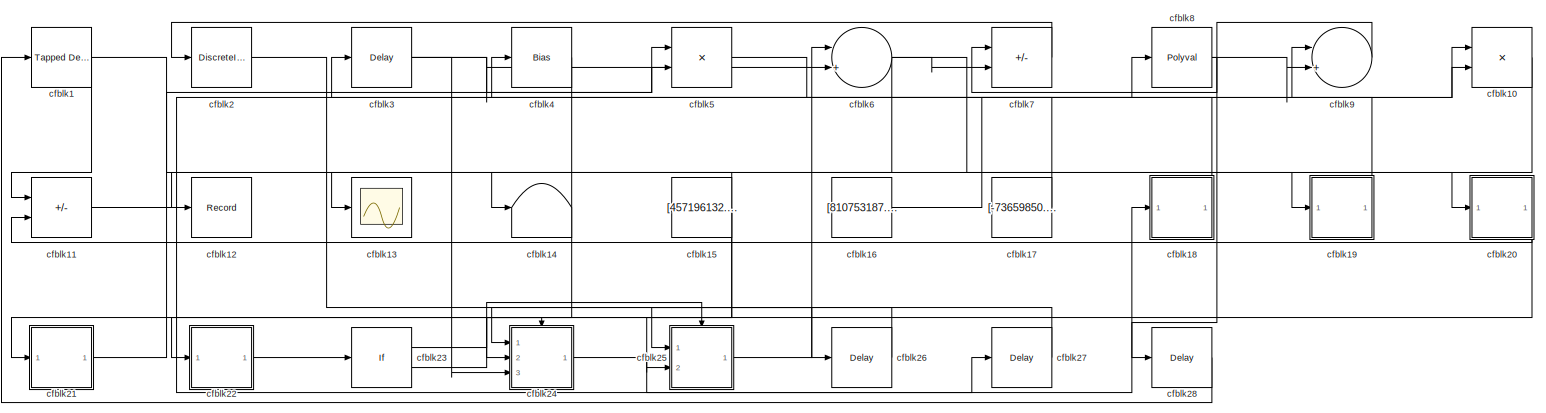
[diagram: root canvas - part 1/1, most of the canvas]
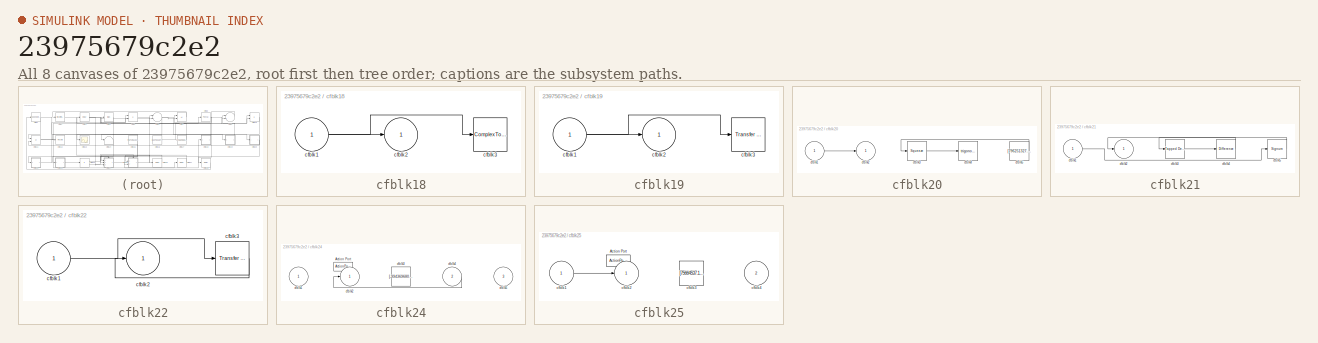
[diagram: thumbnail index - all 8 canvases of the model, root first then tree order]
MODEL slx_23975679c2e2
KIND model
CONFIG AbsTol = auto
CONFIG EnableMultiTasking = off
CONFIG FixedStep = auto
CONFIG MaxStep = auto
CONFIG MinStep = auto
CONFIG RelTol = 1e-3
CONFIG SampleTimeConstraint = Unconstrained
CONFIG SolverName = VariableStepAuto
CONFIG StartTime = 0.0
CONFIG StopTime = 10.0
BLOCK [Reference] cfblk1  REF=simulink/Discrete/Tapped Delay
  Ports = [1, 1]
  SourceBlock = simulink/Discrete/Tapped Delay
  SourceProductBaseCode = SL
  SourceType = Tapped Delay Line
BLOCK [Product] cfblk10
  Ports = [2, 1]
BLOCK [Sum] cfblk11
  IconShape = rectangular
  Inputs = +-
  Ports = [2, 1]
BLOCK [Record] cfblk12
  FileSettingsInternal = {"entries":[{"content":{"excelSettings":{"content":{},"type":"Streamout.ExcelSettings"}},"type":"Streamout.FileSettingStorage","uuid":"2ee2df8a-bed9-40f4-b3a0-bfcae6ee6a80"}],"packageUris":["http://schema.mathworks.com/mf0/streamout_blocks/R2020a"],"version":"1.0"}
  Ports = [1]
  SignalsInternal = {"entries":[{"content":{"signals":[{"content":{"blockPath":["sampleModel128/cfblk12"],"channel":[],"dimensions":[1],"domain":"sampleModel128/cfblk12","lineColor":"#d95319","plots":[1],"port":1,"sid":[""],"signalID":4493,"signalName":"cfblk15"},"type":"RecordBlkView.Signal","uuid":"ba46f971-64eb-44ee-afbc-2cea7536df18"}]},"type":"RecordBlkView.InputSignals","uuid":"a7605b22-abf8-4e14-8f6f-fc0fcd95e...<+97ch>
  VisualizationBindings = {"sparklinesplugin":{"info":[{"bindingParametersList":[],"subplotID":1}]}}
BLOCK [Scope] cfblk13
  Floating = off
  NumInputPorts = 1
  Ports = [1]
BLOCK [Terminator] cfblk14
BLOCK [Constant] cfblk15
  SampleTime = 1
  Value = [457196132.708727]
BLOCK [Constant] cfblk16
  SampleTime = 1
  Value = [810753187.856932]
BLOCK [Constant] cfblk17
  SampleTime = 1
  Value = [-73659850.483335]
BLOCK [SubSystem] cfblk18
  Ports = [1, 1]
  RequestExecContextInheritance = off
BLOCK [Inport] cfblk18/cfblk1
BLOCK [Outport] cfblk18/cfblk2
BLOCK [ComplexToRealImag] cfblk18/cfblk3
  Ports = [1, 2]
BLOCK [SubSystem] cfblk19
  Ports = [1, 1]
  RequestExecContextInheritance = off
BLOCK [Inport] cfblk19/cfblk1
BLOCK [Outport] cfblk19/cfblk2
BLOCK [Reference] cfblk19/cfblk3  REF=simulink/Discrete/Transfer Fcn
Lead or Lag
  Ports = [1, 1]
  SourceBlock = simulink/Discrete/Transfer Fcn\nLead or Lag
  SourceProductBaseCode = SL
  SourceType = Lead or Lag Compensator
BLOCK [DiscreteIntegrator] cfblk2
  ICPrevOutput = DiscIntNeverNeededParam
  ICPrevScaledInput = DiscIntNeverNeededParam
  InitialConditionSetting = Auto
  Ports = [1, 1]
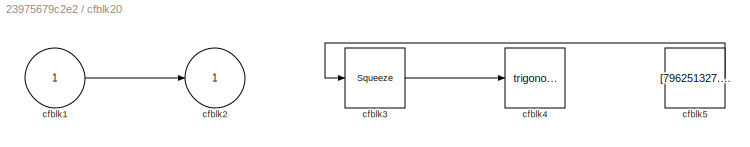
BLOCK [SubSystem] cfblk20
  Ports = [1, 1]
  RequestExecContextInheritance = off
BLOCK [Inport] cfblk20/cfblk1
BLOCK [Outport] cfblk20/cfblk2
BLOCK [Squeeze] cfblk20/cfblk3
BLOCK [Trigonometry] cfblk20/cfblk4
  Ports = [1, 1]
BLOCK [Constant] cfblk20/cfblk5
  SampleTime = 1
  Value = [796251327.458484]
BLOCK [SubSystem] cfblk21
  Ports = [1, 1]
  RequestExecContextInheritance = off
BLOCK [Inport] cfblk21/cfblk1
BLOCK [Outport] cfblk21/cfblk2
BLOCK [Reference] cfblk21/cfblk3  REF=simulink/Discrete/Tapped Delay
  Ports = [1, 1]
  SourceBlock = simulink/Discrete/Tapped Delay
  SourceProductBaseCode = SL
  SourceType = Tapped Delay Line
BLOCK [Reference] cfblk21/cfblk4  REF=simulink/Discrete/Difference
  Ports = [1, 1]
  SourceBlock = simulink/Discrete/Difference
  SourceProductBaseCode = SL
  SourceType = Difference
BLOCK [Signum] cfblk21/cfblk5
BLOCK [SubSystem] cfblk22
  Ports = [1, 1]
  RequestExecContextInheritance = off
BLOCK [Inport] cfblk22/cfblk1
BLOCK [Outport] cfblk22/cfblk2
BLOCK [Reference] cfblk22/cfblk3  REF=simulink/Discrete/Transfer Fcn
First Order
  Ports = [1, 1]
  SourceBlock = simulink/Discrete/Transfer Fcn\nFirst Order
  SourceProductBaseCode = SL
  SourceType = First Order Transfer Fcn
BLOCK [If] cfblk23
  IfExpression = u1 >= 0
  Ports = [1, 2]
  SampleTime = 1
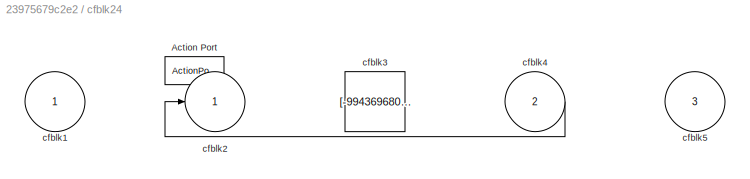
BLOCK [SubSystem] cfblk24
  Ports = [3, 1, 0, 0, 0, 0, 0, 1]
  RequestExecContextInheritance = off
  TreatAsAtomicUnit = on
BLOCK [ActionPort] cfblk24/Action Port
  ActionPortLabel = if(u1 >= 0)
BLOCK [Inport] cfblk24/cfblk1
BLOCK [Outport] cfblk24/cfblk2
BLOCK [Constant] cfblk24/cfblk3
  SampleTime = 1
  Value = [-994369680.581786]
BLOCK [Inport] cfblk24/cfblk4
  Port = 2
BLOCK [Inport] cfblk24/cfblk5
  Port = 3
BLOCK [SubSystem] cfblk25
  Ports = [2, 1, 0, 0, 0, 0, 0, 1]
  RequestExecContextInheritance = off
  TreatAsAtomicUnit = on
BLOCK [ActionPort] cfblk25/Action Port
  ActionPortLabel = else
BLOCK [Inport] cfblk25/cfblk1
BLOCK [Outport] cfblk25/cfblk2
BLOCK [Constant] cfblk25/cfblk3
  SampleTime = 1
  Value = [75664537.172442]
BLOCK [Inport] cfblk25/cfblk4
  Port = 2
BLOCK [Delay] cfblk26
  InputPortMap = u0
  Ports = [1, 1]
  SampleTime = 1
BLOCK [Delay] cfblk27
  InputPortMap = u0
  Ports = [1, 1]
  SampleTime = 1
BLOCK [Delay] cfblk28
  InputPortMap = u0
  Ports = [1, 1]
  SampleTime = 1
BLOCK [Delay] cfblk3
  InputPortMap = u0
  Ports = [1, 1]
  SampleTime = 1
BLOCK [Bias] cfblk4
  Bias = [22835752.609550]
  SaturateOnIntegerOverflow = off
BLOCK [Product] cfblk5
  Ports = [2, 1]
BLOCK [Sum] cfblk6
  Inputs = |++
  Ports = [2, 1]
BLOCK [Sum] cfblk7
  IconShape = rectangular
  Inputs = +-
  Ports = [2, 1]
BLOCK [Polyval] cfblk8
  Coefs = [ +2.081618890e-019, -1.441693666e-014, +4.719686976e-010, -8.536869453e-006, +1.621573104e-001, -8.087801117e+001 ]
BLOCK [Sum] cfblk9
  Inputs = |++
  Ports = [2, 1]
LINE cfblk10:1 -> cfblk13:1
NET cfblk11:1 -> cfblk18:1, cfblk8:1
NET cfblk15:1 -> cfblk12:1, cfblk22:1, cfblk24:2
LINE cfblk16:1 -> cfblk10:1
LINE cfblk17:1 -> cfblk3:1
NET cfblk18/cfblk1:1 -> cfblk18/cfblk2:1, cfblk18/cfblk3:1
LINE cfblk18:1 -> cfblk4:1
NET cfblk19/cfblk1:1 -> cfblk19/cfblk2:1, cfblk19/cfblk3:1
LINE cfblk19:1 -> cfblk9:1
NET cfblk1:1 -> cfblk11:1, cfblk20:1
LINE cfblk20/cfblk1:1 -> cfblk20/cfblk2:1
LINE cfblk20/cfblk3:1 -> cfblk20/cfblk4:1
LINE cfblk20/cfblk5:1 -> cfblk20/cfblk3:1
NET cfblk20:1 -> cfblk11:2, cfblk25:2
LINE cfblk21/cfblk1:1 -> cfblk21/cfblk5:1
LINE cfblk21/cfblk3:1 -> cfblk21/cfblk4:1
LINE cfblk21/cfblk4:1 -> cfblk21/cfblk2:1
LINE cfblk21/cfblk5:1 -> cfblk21/cfblk3:1
LINE cfblk21:1 -> cfblk5:1
LINE cfblk22/cfblk1:1 -> cfblk22/cfblk3:1
LINE cfblk22/cfblk3:1 -> cfblk22/cfblk2:1
LINE cfblk22:1 -> cfblk23:1
LINE cfblk23:1 -> cfblk24:ifaction
LINE cfblk23:2 -> cfblk25:ifaction
LINE cfblk24/cfblk4:1 -> cfblk24/cfblk2:1
LINE cfblk24:1 -> cfblk27:1
LINE cfblk25/cfblk1:1 -> cfblk25/cfblk2:1
LINE cfblk25:1 -> cfblk6:1
LINE cfblk26:1 -> cfblk24:1
LINE cfblk27:1 -> cfblk25:1
LINE cfblk28:1 -> cfblk1:1
LINE cfblk2:1 -> cfblk26:1
NET cfblk3:1 -> cfblk24:3, cfblk5:2, cfblk6:2
LINE cfblk4:1 -> cfblk21:1
LINE cfblk5:1 -> cfblk10:2
NET cfblk6:1 -> cfblk14:1, cfblk19:1, cfblk7:2
LINE cfblk7:1 -> cfblk2:1
NET cfblk8:1 -> cfblk28:1, cfblk9:2
LINE cfblk9:1 -> cfblk7:1
note: NET lines group one-source signal fan-out (src -> all destinations, sorted); 1:1 wires keep LINE
